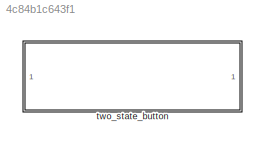
MODEL slx_4c84b1c643f1
KIND library
CONFIG AbsTol = auto
CONFIG EnableMultiTasking = off
CONFIG FixedStep = auto
CONFIG MaxStep = auto
CONFIG MinStep = auto
CONFIG RelTol = 1e-3
CONFIG SampleTimeConstraint = Unconstrained
CONFIG SolverName = VariableStepAuto
CONFIG StartTime = 0.0
CONFIG StopTime = 10.0
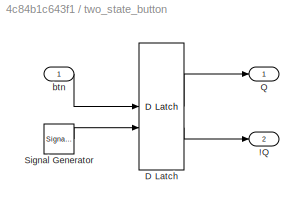
BLOCK [SubSystem] two_state_button
BLOCK [Outport] two_state_button/!Q
  Port = 2
BLOCK [Reference] two_state_button/D Latch  REF=simulink_extras/Flip Flops/D Latch
  SourceBlock = simulink_extras/Flip Flops/D Latch
  SourceType = DLatch
BLOCK [Outport] two_state_button/Q
  OutDataTypeStr = boolean
BLOCK [SignalGenerator] two_state_button/Signal Generator
  Frequency = 60
  WaveForm = square
BLOCK [Inport] two_state_button/btn
  OutDataTypeStr = boolean
LINE two_state_button/D Latch:1 -> two_state_button/Q:1
LINE two_state_button/D Latch:2 -> two_state_button/!Q:1
LINE two_state_button/Signal Generator:1 -> two_state_button/D Latch:2
LINE two_state_button/btn:1 -> two_state_button/D Latch:1
